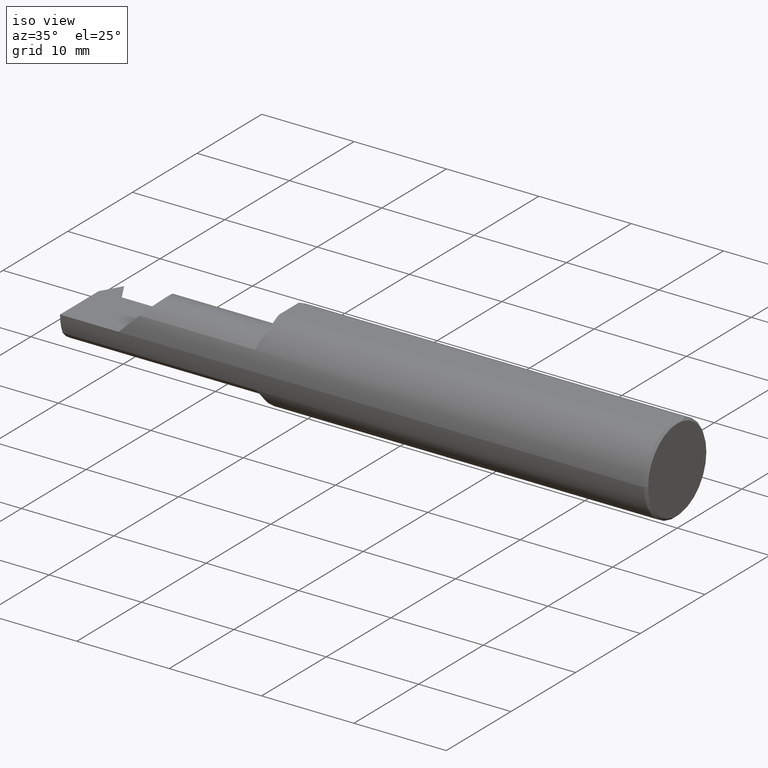
[diagram: clean part render]
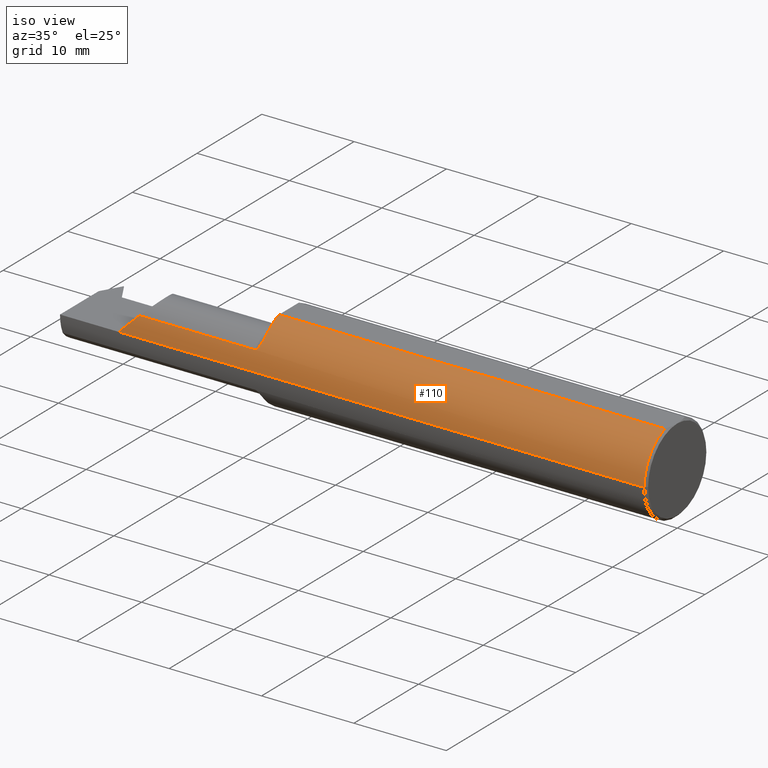
[diagram: same view with one face highlighted and labeled with its STEP entity id]
A machine part, iso view. The second image highlights one B-rep face of the part: STEP entity #110.
In plain terms, the highlighted cylindrical surface (partial cylindrical patch) has radius 4.7587 mm, axis along (1, 0, -0).
Its self-contained STEP definition (entity closure, byte-faithful):
#24 = DIRECTION ( 'NONE',  ( 0.000000000000000000, 1.000000000000000000, 0.000000000000000000 ) ) ;
#26 = AXIS2_PLACEMENT_3D ( 'NONE', #840, #380, #165 ) ;
#31 = EDGE_CURVE ( 'NONE', #618, #571, #629, .T. ) ;
#38 = CARTESIAN_POINT ( 'NONE',  ( -2.197245014477020586, -0.1817375716013221731, 0.05275498552297869931 ) ) ;
#52 = ORIENTED_EDGE ( 'NONE', *, *, #822, .T. ) ;
#85 = EDGE_CURVE ( 'NONE', #137, #571, #839, .T. ) ;
#94 = CARTESIAN_POINT ( 'NONE',  ( -0.009999999999999049580, -0.1873499999999995724, 2.294375778202565406E-17 ) ) ;
#110 = ADVANCED_FACE ( 'NONE', ( #361 ), #701, .T. ) ;
#132 = VERTEX_POINT ( 'NONE', #765 ) ;
#137 = VERTEX_POINT ( 'NONE', #483 ) ;
#151 = CARTESIAN_POINT ( 'NONE',  ( -1.655000000000000471, -0.1232518659284808082, 0.1410992560044136979 ) ) ;
#158 = DIRECTION ( 'NONE',  ( -1.000000000000000000, -1.224646799147319927E-16, 0.000000000000000000 ) ) ;
#161 = CARTESIAN_POINT ( 'NONE',  ( -2.500000000000000000, -0.06039039658753654616, 0.1773500000000000909 ) ) ;
#164 = DIRECTION ( 'NONE',  ( -1.000000000000000000, 7.807390513315893590E-17, -0.000000000000000000 ) ) ;
#165 = DIRECTION ( 'NONE',  ( 0.000000000000000000, -1.000000000000000000, 2.664535259100375303E-15 ) ) ;
#166 = ORIENTED_EDGE ( 'NONE', *, *, #848, .T. ) ;
#195 = CARTESIAN_POINT ( 'NONE',  ( -1.680000000000000160, -0.1707639599170689693, 0.07706940050007969611 ) ) ;
#214 = VERTEX_POINT ( 'NONE', #151 ) ;
#241 = CARTESIAN_POINT ( 'NONE',  ( -2.039733339501604625, -0.1707639599170687750, 0.07706940050007952958 ) ) ;
#242 = CARTESIAN_POINT ( 'NONE',  ( -1.676415813383502984, -0.1703907533020768139, 0.07790009962036420488 ) ) ;
#253 = CARTESIAN_POINT ( 'NONE',  ( -1.661440222444133141, -0.1564830431723805981, 0.1032649757824550263 ) ) ;
#262 = EDGE_LOOP ( 'NONE', ( #786, #487, #52, #727, #802, #166, #633 ) ) ;
#310 = CARTESIAN_POINT ( 'NONE',  ( -1.657006704648574802, -0.1436305184912887167, 0.1205106202209918209 ) ) ;
#318 = CARTESIAN_POINT ( 'NONE',  ( -1.655000000000000471, -0.1232518659284808082, 0.1410992560044136979 ) ) ;
#324 = CARTESIAN_POINT ( 'NONE',  ( -1.655000000000000249, -0.06039039658753644207, 0.1773500000000000909 ) ) ;
#361 = FACE_OUTER_BOUND ( 'NONE', #262, .T. ) ;
#380 = DIRECTION ( 'NONE',  ( 1.000000000000000000, -7.807390513315893590E-17, 0.000000000000000000 ) ) ;
#392 = AXIS2_PLACEMENT_3D ( 'NONE', #565, #627, #24 ) ;
#405 = VECTOR ( 'NONE', #794, 39.37007874015748143 ) ;
#430 = CARTESIAN_POINT ( 'NONE',  ( -2.172930599499919513, -0.1707639599170687472, 0.07706940050007969611 ) ) ;
#438 = CARTESIAN_POINT ( 'NONE',  ( -1.654999999999961613, -0.1287237903461465327, 0.1363194654249254290 ) ) ;
#442 = AXIS2_PLACEMENT_3D ( 'NONE', #636, #158, #459 ) ;
#443 = CARTESIAN_POINT ( 'NONE',  ( -1.672416064253384960, -0.1687648201645030044, 0.08136796075313840193 ) ) ;
#459 = DIRECTION ( 'NONE',  ( -1.253099476677462854E-16, 1.000000000000000000, 0.000000000000000000 ) ) ;
#472 = CIRCLE ( 'NONE', #442, 0.1873499999999999610 ) ;
#483 = CARTESIAN_POINT ( 'NONE',  ( -1.680000000000000160, -0.1707639599170689693, 0.07706940050007969611 ) ) ;
#487 = ORIENTED_EDGE ( 'NONE', *, *, #680, .T. ) ;
#489 = EDGE_CURVE ( 'NONE', #651, #132, #516, .T. ) ;
#505 = CARTESIAN_POINT ( 'NONE',  ( -2.172930599499919513, -0.1707639599170687472, 0.07706940050007969611 ) ) ;
#513 = CIRCLE ( 'NONE', #26, 0.1873499999999999610 ) ;
#516 = LINE ( 'NONE', #161, #579 ) ;
#526 = CARTESIAN_POINT ( 'NONE',  ( -1.663450250038203126, -0.1602467909268637802, 0.09729936756275321674 ) ) ;
#529 = LINE ( 'NONE', #791, #405 ) ;
#534 = CARTESIAN_POINT ( 'NONE',  ( -2.250000000000000000, -0.1873499999999998500, 0.000000000000000000 ) ) ;
#565 = CARTESIAN_POINT ( 'NONE',  ( -2.500000000000000000, 6.123233995736767268E-17, 0.000000000000000000 ) ) ;
#571 = VERTEX_POINT ( 'NONE', #505 ) ;
#579 = VECTOR ( 'NONE', #771, 39.37007874015748143 ) ;
#586 = CARTESIAN_POINT ( 'NONE',  ( -1.655409339232164712, -0.1338927672609062092, 0.1312450467764073592 ) ) ;
#598 = VECTOR ( 'NONE', #164, 39.37007874015748143 ) ;
#618 = VERTEX_POINT ( 'NONE', #534 ) ;
#627 = DIRECTION ( 'NONE',  ( 1.000000000000000000, 1.224646799147352961E-16, -0.000000000000000000 ) ) ;
#629 =( BOUNDED_CURVE ( )  B_SPLINE_CURVE ( 3, ( #775, #835, #38, #430 ),
 .UNSPECIFIED., .F., .F. ) 
 B_SPLINE_CURVE_WITH_KNOTS ( ( 4, 4 ),
 ( 4.712388980384689674, 5.136341099405679067 ),
 .UNSPECIFIED. ) 
 CURVE ( )  GEOMETRIC_REPRESENTATION_ITEM ( )  RATIONAL_B_SPLINE_CURVE ( ( 1.000000000000000000, 0.9850780508747842834, 0.9850780508747842834, 1.000000000000000000 ) ) 
 REPRESENTATION_ITEM ( '' )  );
#632 = CARTESIAN_POINT ( 'NONE',  ( -1.669298956272739831, -0.1667615360002480951, 0.08543863798050184422 ) ) ;
#633 = ORIENTED_EDGE ( 'NONE', *, *, #85, .T. ) ;
#636 = CARTESIAN_POINT ( 'NONE',  ( -0.009999999999999073866, 3.661693929450587103E-16, 0.000000000000000000 ) ) ;
#651 = VERTEX_POINT ( 'NONE', #324 ) ;
#664 = B_SPLINE_CURVE_WITH_KNOTS ( 'NONE', 3,
 ( #318, #438, #586, #310, #853, #253, #526, #789, #632, #443, #705, #242, #801, #195 ),
 .UNSPECIFIED., .F., .F.,
 ( 4, 2, 2, 2, 2, 2, 4 ),
 ( 0.0003577765748898310231, 0.0009104683997785754761, 0.001463160224667319929, 0.002015852049556064382, 0.002292197962000437801, 0.002430370918222630149, 0.002568543874444822496 ),
 .UNSPECIFIED. ) ;
#680 = EDGE_CURVE ( 'NONE', #618, #758, #529, .T. ) ;
#701 = CYLINDRICAL_SURFACE ( 'NONE', #392, 0.1873499999999999610 ) ;
#705 = CARTESIAN_POINT ( 'NONE',  ( -1.673586104532882812, -0.1693889752090141643, 0.08005503987477533001 ) ) ;
#727 = ORIENTED_EDGE ( 'NONE', *, *, #489, .F. ) ;
#758 = VERTEX_POINT ( 'NONE', #94 ) ;
#765 = CARTESIAN_POINT ( 'NONE',  ( -0.009999999999999073866, -0.06039039658753624085, 0.1773500000000000909 ) ) ;
#771 = DIRECTION ( 'NONE',  ( 1.000000000000000000, 1.224646799147352961E-16, -0.000000000000000000 ) ) ;
#775 = CARTESIAN_POINT ( 'NONE',  ( -2.250000000000000000, -0.1873499999999998500, 0.000000000000000000 ) ) ;
#778 = EDGE_CURVE ( 'NONE', #651, #214, #513, .T. ) ;
#786 = ORIENTED_EDGE ( 'NONE', *, *, #31, .F. ) ;
#789 = CARTESIAN_POINT ( 'NONE',  ( -1.667693213531851404, -0.1652178096906194715, 0.08840046645041961526 ) ) ;
#791 = CARTESIAN_POINT ( 'NONE',  ( -2.500000000000000000, -0.1873499999999998777, 2.294375778202565406E-17 ) ) ;
#794 = DIRECTION ( 'NONE',  ( 1.000000000000000000, 1.224646799147352961E-16, -0.000000000000000000 ) ) ;
#801 = CARTESIAN_POINT ( 'NONE',  ( -1.678129391043012619, -0.1707639599176933032, 0.07706940049869577536 ) ) ;
#802 = ORIENTED_EDGE ( 'NONE', *, *, #778, .T. ) ;
#822 = EDGE_CURVE ( 'NONE', #758, #132, #472, .T. ) ;
#835 = CARTESIAN_POINT ( 'NONE',  ( -2.223323963392672908, -0.1873499999999998500, 0.02667603660732702914 ) ) ;
#839 = LINE ( 'NONE', #241, #598 ) ;
#840 = CARTESIAN_POINT ( 'NONE',  ( -1.655000000000000249, 1.647149944853189991E-16, 0.000000000000000000 ) ) ;
#848 = EDGE_CURVE ( 'NONE', #214, #137, #664, .T. ) ;
#853 = CARTESIAN_POINT ( 'NONE',  ( -1.658201226339376610, -0.1482043182641867851, 0.1148306495308974440 ) ) ;